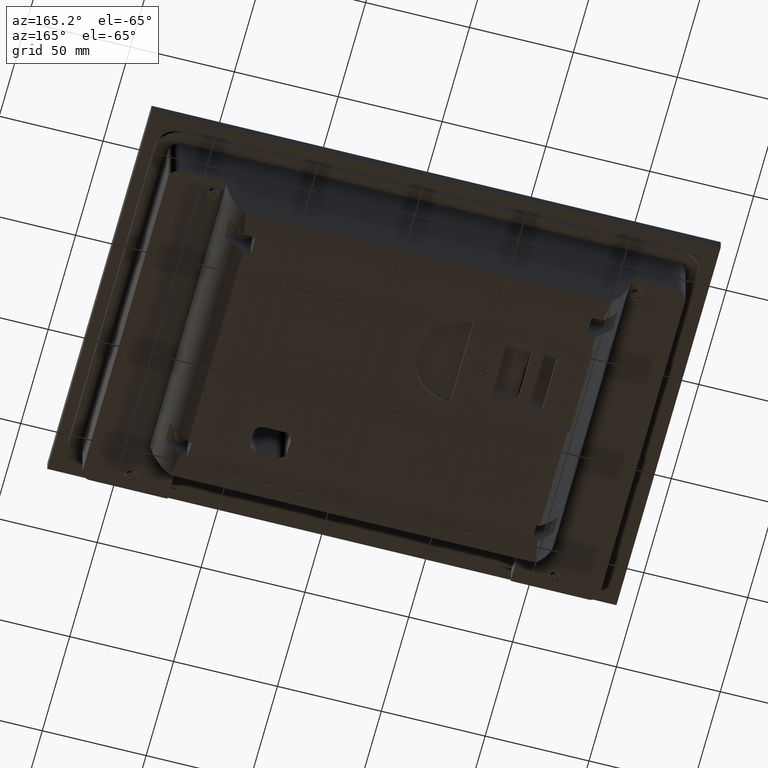
[diagram: clean part render]
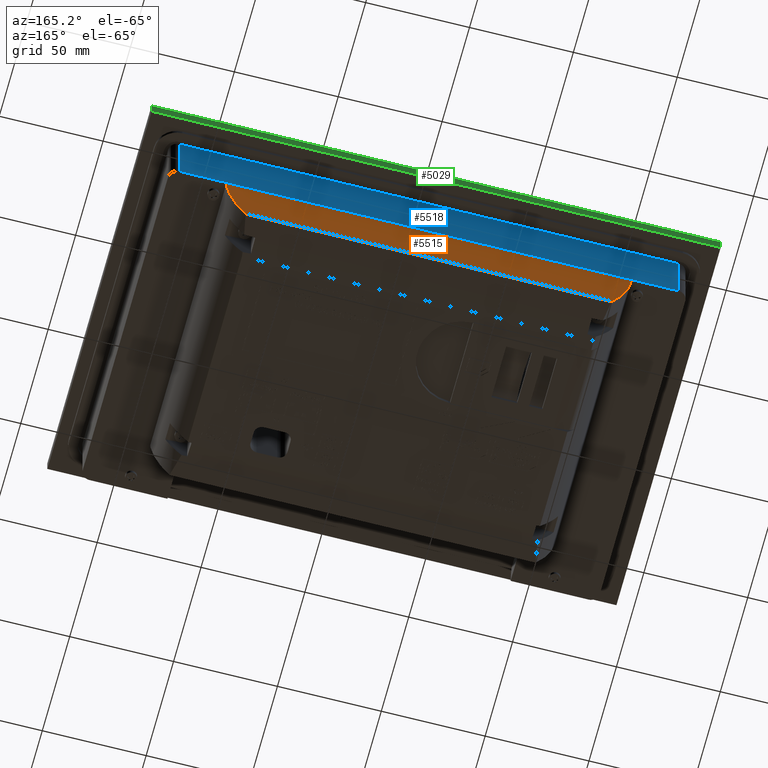
[diagram: same view with three faces highlighted in distinct colors, each labeled with its STEP entity id]
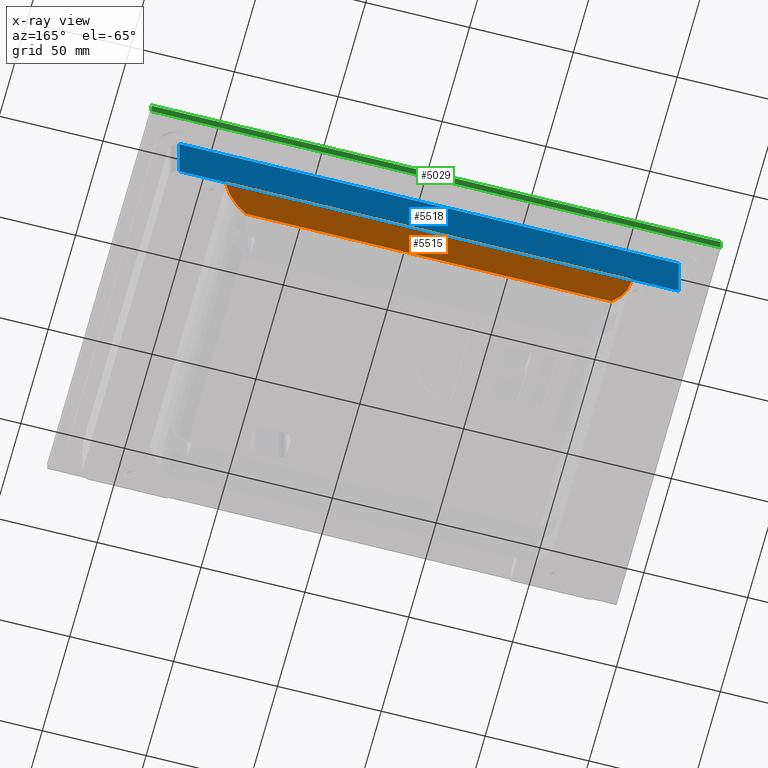
[diagram: x-ray of the same camera — body ghosted, the three highlighted faces saturated]
A machine part, auxiliary view with three faces highlighted in distinct colors.
The next image is the same camera in x-ray (body ghosted, the three faces saturated) — at least one of them is partly hidden behind the body in this view.
Their STEP definitions:

[orange] entity #5515 — the highlighted planar face has unit normal (0, 1, 0).
#1245=CIRCLE('',#52382,60.0001018064894);
#1255=CIRCLE('',#52398,60.0000043242569);
#5515=ADVANCED_FACE('',(#10571),#8135,.T.);
#8135=PLANE('',#52404);
#10571=FACE_OUTER_BOUND('',#13267,.T.);
#13267=EDGE_LOOP('',(#18721,#18722,#18723,#18724,#18725,#18726));
#18721=ORIENTED_EDGE('',*,*,#34996,.T.);
#18722=ORIENTED_EDGE('',*,*,#34947,.F.);
#18723=ORIENTED_EDGE('',*,*,#34997,.T.);
#18724=ORIENTED_EDGE('',*,*,#34956,.F.);
#18725=ORIENTED_EDGE('',*,*,#34995,.F.);
#18726=ORIENTED_EDGE('',*,*,#34986,.T.);
#30027=VERTEX_POINT('',#69879);
#30028=VERTEX_POINT('',#69881);
#30036=VERTEX_POINT('',#69904);
#30037=VERTEX_POINT('',#69906);
#30061=VERTEX_POINT('',#69964);
#30062=VERTEX_POINT('',#69966);
#34947=EDGE_CURVE('',#30027,#30028,#1245,.T.);
#34956=EDGE_CURVE('',#30036,#30037,#41181,.T.);
#34986=EDGE_CURVE('',#30062,#30061,#1255,.T.);
#34995=EDGE_CURVE('',#30062,#30036,#41203,.T.);
#34996=EDGE_CURVE('',#30061,#30028,#41204,.T.);
#34997=EDGE_CURVE('',#30027,#30037,#41205,.T.);
#41181=LINE('',#69905,#46757);
#41203=LINE('',#69987,#46779);
#41204=LINE('',#69989,#46780);
#41205=LINE('',#69990,#46781);
#46757=VECTOR('',#57489,1.);
#46779=VECTOR('',#57545,1.);
#46780=VECTOR('',#57548,1.);
#46781=VECTOR('',#57549,1.);
#52382=AXIS2_PLACEMENT_3D('',#69880,#57477,#57478);
#52398=AXIS2_PLACEMENT_3D('',#69965,#57532,#57533);
#52404=AXIS2_PLACEMENT_3D('',#69991,#57550,#57551);
#57477=DIRECTION('',(1.49329994058844E-005,-0.999657976966521,-0.0261520336533901));
#57478=DIRECTION('',(0.,-0.0261520336563061,0.99965797707798));
#57489=DIRECTION('',(-0.999999348009036,1.49330969037773E-005,-0.00114182244892102));
#57532=DIRECTION('',(-1.49329994058844E-005,0.999657976966521,0.0261520336533901));
#57533=DIRECTION('',(0.,-0.026152033656306,0.99965797707798));
#57545=DIRECTION('',(-0.00114182245019613,-0.0261520336533344,0.999657324975557));
#57548=DIRECTION('',(-0.999999348009036,1.49330969037705E-005,-0.00114182244892103));
#57549=DIRECTION('',(-0.00114182245019613,-0.0261520336533344,0.999657324975557));
#57550=DIRECTION('',(-1.49329994058844E-005,0.999657976966521,0.0261520336533901));
#57551=DIRECTION('',(0.,-0.026152033656306,0.99965797707798));
#69879=CARTESIAN_POINT('',(-97.9112490350455,68.978752512193,-38.0379471558798));
#69880=CARTESIAN_POINT('',(-38.2876115132418,68.8041430041552,-31.3294766165288));
#69881=CARTESIAN_POINT('',(-88.63660893118,69.656841962515,-63.9525295129692));
#69904=CARTESIAN_POINT('',(96.8249474879969,68.9224563605164,-35.774838543091));
#69905=CARTESIAN_POINT('',(96.8249474879969,68.9224563605164,-35.774838543091));
#69906=CARTESIAN_POINT('',(-97.9135800122601,68.9253644117145,-35.9971955104354));
#69964=CARTESIAN_POINT('',(87.6118629449231,69.6542100252889,-63.7512849199836));
#69965=CARTESIAN_POINT('',(37.1885569511623,68.8030171698582,-31.2433443162896));
#69966=CARTESIAN_POINT('',(96.8272783880613,68.9758427489548,-37.8155247460789));
#69987=CARTESIAN_POINT('',(96.8622850821183,69.7776278609804,-68.4636330697918));
#69989=CARTESIAN_POINT('',(105.087557914959,69.6539490588723,-63.7313307661463));
#69990=CARTESIAN_POINT('',(-97.8762424181387,69.7805359121786,-68.6859900371361));
#69991=CARTESIAN_POINT('',(96.8622850821183,69.7776278609805,-68.4636330697918));

[blue] entity #5518 — the highlighted planar face has unit normal (-0, -1, -0).
#5518=ADVANCED_FACE('',(#10574),#8137,.F.);
#8137=PLANE('',#52408);
#10574=FACE_OUTER_BOUND('',#13270,.T.);
#13270=EDGE_LOOP('',(#18735,#18736,#18737,#18738));
#18735=ORIENTED_EDGE('',*,*,#35003,.T.);
#18736=ORIENTED_EDGE('',*,*,#35004,.F.);
#18737=ORIENTED_EDGE('',*,*,#34964,.F.);
#18738=ORIENTED_EDGE('',*,*,#35002,.T.);
#30044=VERTEX_POINT('',#69920);
#30045=VERTEX_POINT('',#69922);
#30070=VERTEX_POINT('',#69999);
#30071=VERTEX_POINT('',#70003);
#34964=EDGE_CURVE('',#30044,#30045,#41187,.T.);
#35002=EDGE_CURVE('',#30044,#30070,#41209,.T.);
#35003=EDGE_CURVE('',#30070,#30071,#41210,.T.);
#35004=EDGE_CURVE('',#30045,#30071,#41211,.T.);
#41187=LINE('',#69921,#46763);
#41209=LINE('',#70000,#46785);
#41210=LINE('',#70002,#46786);
#41211=LINE('',#70004,#46787);
#46763=VECTOR('',#57499,1.);
#46785=VECTOR('',#57559,1.);
#46786=VECTOR('',#57562,1.);
#46787=VECTOR('',#57563,1.);
#52408=AXIS2_PLACEMENT_3D('',#70005,#57564,#57565);
#57499=DIRECTION('',(0.999999348009036,-1.49330969037589E-005,0.00114182244892103));
#57559=DIRECTION('',(-0.00114182245019613,-0.0261520336533345,0.999657324975557));
#57562=DIRECTION('',(0.999999348009036,-1.49330969037589E-005,0.00114182244892103));
#57563=DIRECTION('',(-0.00114182245019613,-0.0261520336533345,0.999657324975557));
#57564=DIRECTION('',(1.49329994059031E-005,-0.999657976966521,-0.0261520336533901));
#57565=DIRECTION('',(0.,0.026152033656306,-0.99965797707798));
#69920=CARTESIAN_POINT('',(-120.779246815504,69.5245438184303,-36.0076378604537));
#69921=CARTESIAN_POINT('',(-120.779246815504,69.5245438184331,-36.0076378604537));
#69922=CARTESIAN_POINT('',(119.690596400229,69.5209528566207,-35.7330638161616));
#69999=CARTESIAN_POINT('',(-120.81350148901,68.7399828088303,-6.01791811118703));
#70000=CARTESIAN_POINT('',(-120.779246815504,69.5245438184303,-36.0076378604537));
#70002=CARTESIAN_POINT('',(-120.81350148901,68.7399828088331,-6.01791811118695));
#70003=CARTESIAN_POINT('',(119.656341726723,68.7363918470206,-5.74334406689491));
#70004=CARTESIAN_POINT('',(119.690596400229,69.5209528566207,-35.7330638161616));
#70005=CARTESIAN_POINT('',(-120.779246815504,69.5245438184331,-36.0076378604537));

[green] entity #5029 — the highlighted planar face has unit normal (-0, -1, -0).
#5029=ADVANCED_FACE('',(#10130),#7797,.F.);
#7797=PLANE('',#51590);
#10130=FACE_OUTER_BOUND('',#12709,.T.);
#12709=EDGE_LOOP('',(#16209,#16210,#16211,#16212));
#16209=ORIENTED_EDGE('',*,*,#33649,.T.);
#16210=ORIENTED_EDGE('',*,*,#33657,.F.);
#16211=ORIENTED_EDGE('',*,*,#33658,.F.);
#16212=ORIENTED_EDGE('',*,*,#33654,.T.);
#29110=VERTEX_POINT('',#66857);
#29112=VERTEX_POINT('',#66861);
#29117=VERTEX_POINT('',#66873);
#29119=VERTEX_POINT('',#66879);
#33649=EDGE_CURVE('',#29110,#29112,#40204,.T.);
#33654=EDGE_CURVE('',#29117,#29110,#40209,.T.);
#33657=EDGE_CURVE('',#29119,#29112,#40212,.T.);
#33658=EDGE_CURVE('',#29117,#29119,#40213,.T.);
#40204=LINE('',#66862,#45776);
#40209=LINE('',#66872,#45781);
#40212=LINE('',#66878,#45784);
#40213=LINE('',#66880,#45785);
#45776=VECTOR('',#54912,1.);
#45781=VECTOR('',#54919,1.);
#45784=VECTOR('',#54924,1.);
#45785=VECTOR('',#54925,1.);
#51590=AXIS2_PLACEMENT_3D('',#66881,#54926,#54927);
#54912=DIRECTION('',(0.999999348009036,-1.49330969038041E-005,0.00114182244892103));
#54919=DIRECTION('',(-0.00114182245019613,-0.0261520336533344,0.999657324975557));
#54924=DIRECTION('',(-0.00114182245019613,-0.0261520336533344,0.999657324975557));
#54925=DIRECTION('',(0.999999348009036,-1.49330969038041E-005,0.00114182244892103));
#54926=DIRECTION('',(1.49329994058578E-005,-0.999657976966521,-0.0261520336533901));
#54927=DIRECTION('',(0.,0.026152033656306,-0.99965797707798));
#66857=CARTESIAN_POINT('',(-137.585535773716,81.5890259104983,0.301125189456711));
#66861=CARTESIAN_POINT('',(136.41428558076,81.5849342419467,0.613984540461073));
#66862=CARTESIAN_POINT('',(-137.585535773716,81.5890259104983,0.301125189456711));
#66872=CARTESIAN_POINT('',(-137.578684839015,81.7459381124183,-5.69681876039663));
#66873=CARTESIAN_POINT('',(-137.578684839015,81.7459381124183,-5.69681876039663));
#66878=CARTESIAN_POINT('',(136.421136515461,81.7418464438667,-5.38395940939227));
#66879=CARTESIAN_POINT('',(136.421136515461,81.7418464438667,-5.38395940939227));
#66880=CARTESIAN_POINT('',(-137.578684839015,81.7459381124183,-5.69681876039663));
#66881=CARTESIAN_POINT('',(-137.578684839015,81.7459381124183,-5.69681876039663));